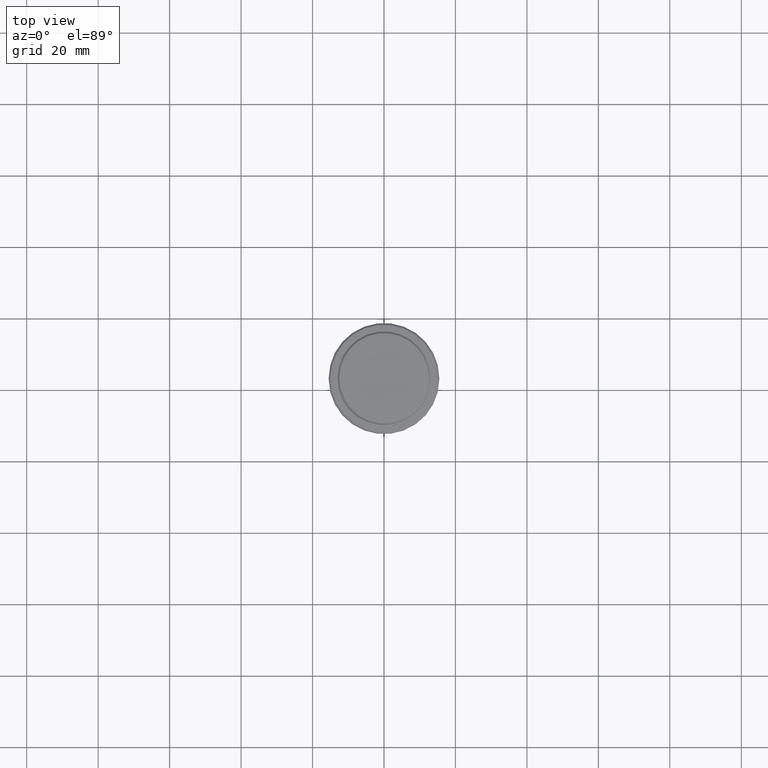
[diagram: clean part render]
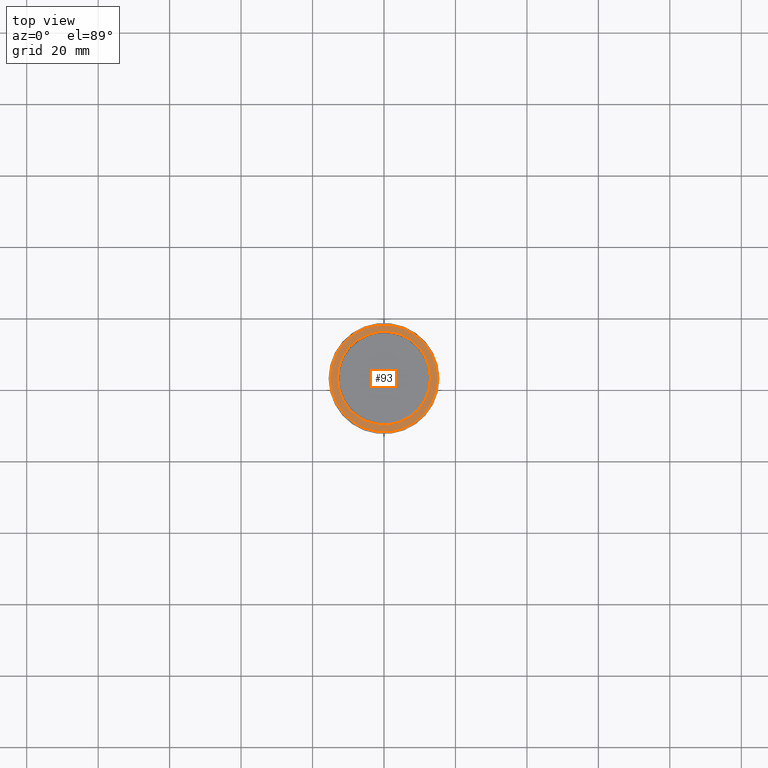
[diagram: same view with one face highlighted and labeled with its STEP entity id]
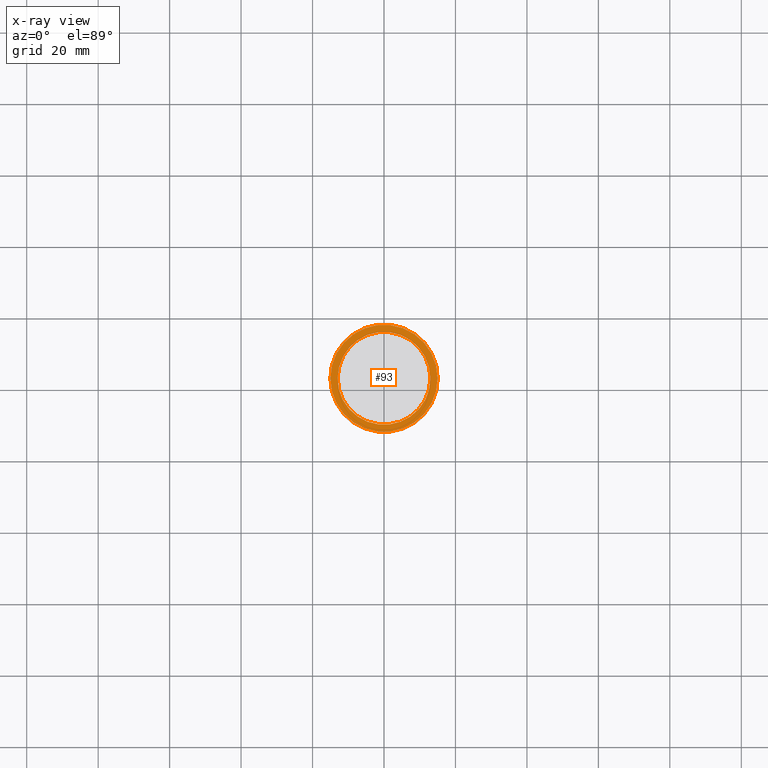
[diagram: x-ray of the same camera — body ghosted, the highlighted face saturated]
A machine part, top view. The second image highlights one B-rep face of the part: STEP entity #93.
The next image is the same camera in x-ray: the body ghosted, the highlighted face saturated — about 0% of this face is hidden behind the body in this view.
In plain terms, the highlighted planar face has unit normal (0, -0, 1).
Its self-contained STEP definition (entity closure, byte-faithful):
#15 = AXIS2_PLACEMENT_3D ( 'NONE', #451, #890, #24 ) ;
#21 = CIRCLE ( 'NONE', #196, 12.99999999999999467 ) ;
#24 = DIRECTION ( 'NONE',  ( 1.000000000000000000, 0.000000000000000000, 0.000000000000000000 ) ) ;
#53 = AXIS2_PLACEMENT_3D ( 'NONE', #834, #918, #943 ) ;
#93 = ADVANCED_FACE ( 'NONE', ( #164, #1385 ), #498, .T. ) ;
#103 = CARTESIAN_POINT ( 'NONE',  ( 0.000000000000000000, 0.000000000000000000, -9.000000000000000000 ) ) ;
#118 = DIRECTION ( 'NONE',  ( 0.000000000000000000, 0.000000000000000000, -1.000000000000000000 ) ) ;
#164 = FACE_OUTER_BOUND ( 'NONE', #1127, .T. ) ;
#196 = AXIS2_PLACEMENT_3D ( 'NONE', #556, #1215, #238 ) ;
#225 = CIRCLE ( 'NONE', #1273, 15.00000000000001421 ) ;
#238 = DIRECTION ( 'NONE',  ( 1.000000000000000000, 0.000000000000000000, 0.000000000000000000 ) ) ;
#265 = EDGE_CURVE ( 'NONE', #1406, #1031, #1293, .T. ) ;
#284 = CARTESIAN_POINT ( 'NONE',  ( -15.00000000000001421, 0.000000000000000000, -9.000000000000000000 ) ) ;
#297 = EDGE_LOOP ( 'NONE', ( #1394, #1052 ) ) ;
#334 = CARTESIAN_POINT ( 'NONE',  ( 15.00000000000001421, 1.867586368699714559E-15, -9.000000000000000000 ) ) ;
#363 = EDGE_CURVE ( 'NONE', #1102, #407, #999, .T. ) ;
#407 = VERTEX_POINT ( 'NONE', #1017 ) ;
#451 = CARTESIAN_POINT ( 'NONE',  ( 0.000000000000000000, 0.000000000000000000, -9.000000000000000000 ) ) ;
#498 = PLANE ( 'NONE',  #53 ) ;
#523 = CARTESIAN_POINT ( 'NONE',  ( 0.000000000000000000, 0.000000000000000000, -9.000000000000000000 ) ) ;
#556 = CARTESIAN_POINT ( 'NONE',  ( 0.000000000000000000, 0.000000000000000000, -9.000000000000000000 ) ) ;
#603 = ORIENTED_EDGE ( 'NONE', *, *, #745, .T. ) ;
#716 = CARTESIAN_POINT ( 'NONE',  ( -12.99999999999999467, 1.592040838891558504E-15, -9.000000000000000000 ) ) ;
#745 = EDGE_CURVE ( 'NONE', #1031, #1406, #225, .T. ) ;
#834 = CARTESIAN_POINT ( 'NONE',  ( 0.000000000000000000, 12.49999999999999289, -9.000000000000000000 ) ) ;
#855 = DIRECTION ( 'NONE',  ( 1.000000000000000000, 0.000000000000000000, 0.000000000000000000 ) ) ;
#890 = DIRECTION ( 'NONE',  ( -0.000000000000000000, -0.000000000000000000, 1.000000000000000000 ) ) ;
#918 = DIRECTION ( 'NONE',  ( 0.000000000000000000, -0.000000000000000000, 1.000000000000000000 ) ) ;
#943 = DIRECTION ( 'NONE',  ( 1.000000000000000000, 0.000000000000000000, 0.000000000000000000 ) ) ;
#999 = CIRCLE ( 'NONE', #1040, 12.99999999999999467 ) ;
#1017 = CARTESIAN_POINT ( 'NONE',  ( 12.99999999999999467, 0.000000000000000000, -9.000000000000000000 ) ) ;
#1031 = VERTEX_POINT ( 'NONE', #284 ) ;
#1040 = AXIS2_PLACEMENT_3D ( 'NONE', #523, #118, #855 ) ;
#1052 = ORIENTED_EDGE ( 'NONE', *, *, #363, .T. ) ;
#1102 = VERTEX_POINT ( 'NONE', #716 ) ;
#1127 = EDGE_LOOP ( 'NONE', ( #603, #1299 ) ) ;
#1215 = DIRECTION ( 'NONE',  ( 0.000000000000000000, 0.000000000000000000, -1.000000000000000000 ) ) ;
#1273 = AXIS2_PLACEMENT_3D ( 'NONE', #103, #1287, #1277 ) ;
#1277 = DIRECTION ( 'NONE',  ( 1.000000000000000000, 0.000000000000000000, 0.000000000000000000 ) ) ;
#1287 = DIRECTION ( 'NONE',  ( -0.000000000000000000, -0.000000000000000000, 1.000000000000000000 ) ) ;
#1293 = CIRCLE ( 'NONE', #15, 15.00000000000001421 ) ;
#1299 = ORIENTED_EDGE ( 'NONE', *, *, #265, .T. ) ;
#1328 = EDGE_CURVE ( 'NONE', #407, #1102, #21, .T. ) ;
#1385 = FACE_BOUND ( 'NONE', #297, .T. ) ;
#1394 = ORIENTED_EDGE ( 'NONE', *, *, #1328, .T. ) ;
#1406 = VERTEX_POINT ( 'NONE', #334 ) ;